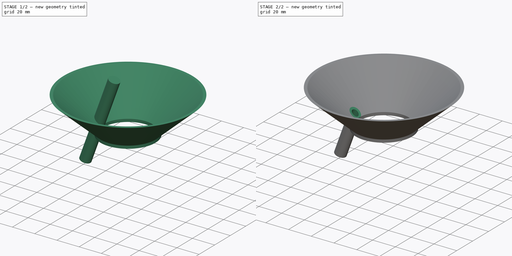
[diagram: build sequence overview — one tinted view per stage of 2, left to right]
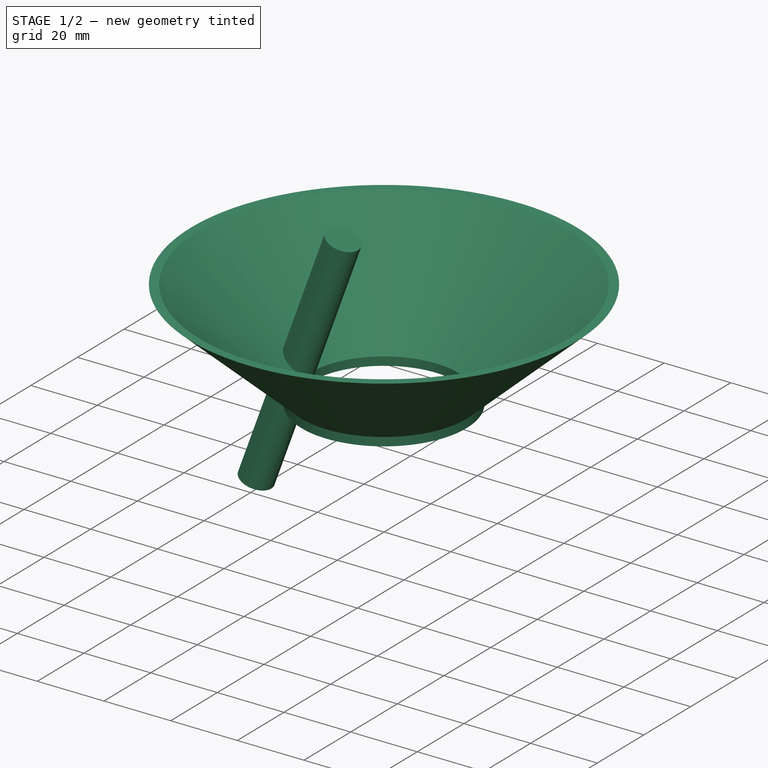
[diagram: stage 1 of 2 — iso view after this stage's code; geometry added in this stage tinted green]
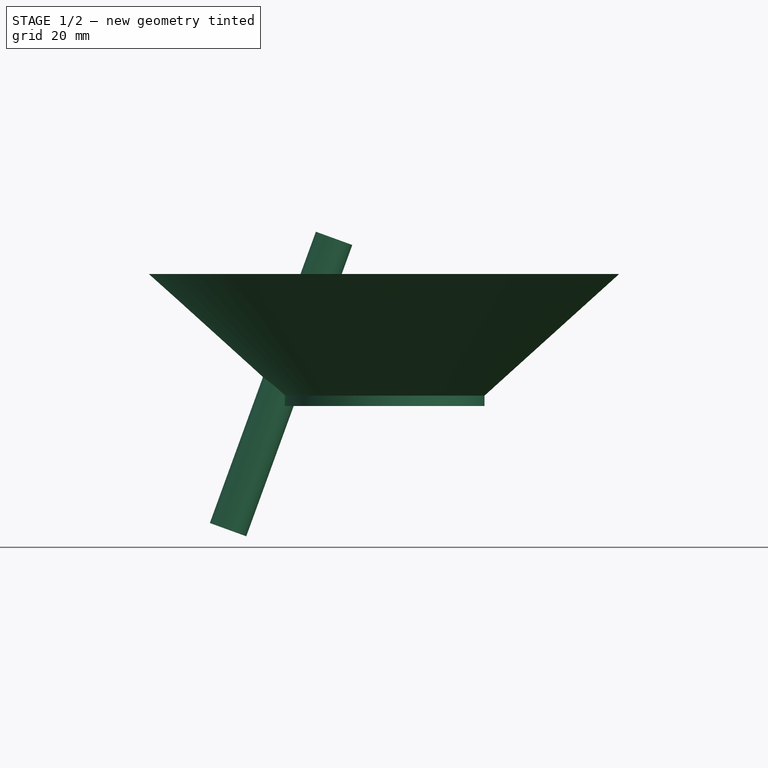
[diagram: stage 1 of 2 — front view after this stage's code; geometry added in this stage tinted green]
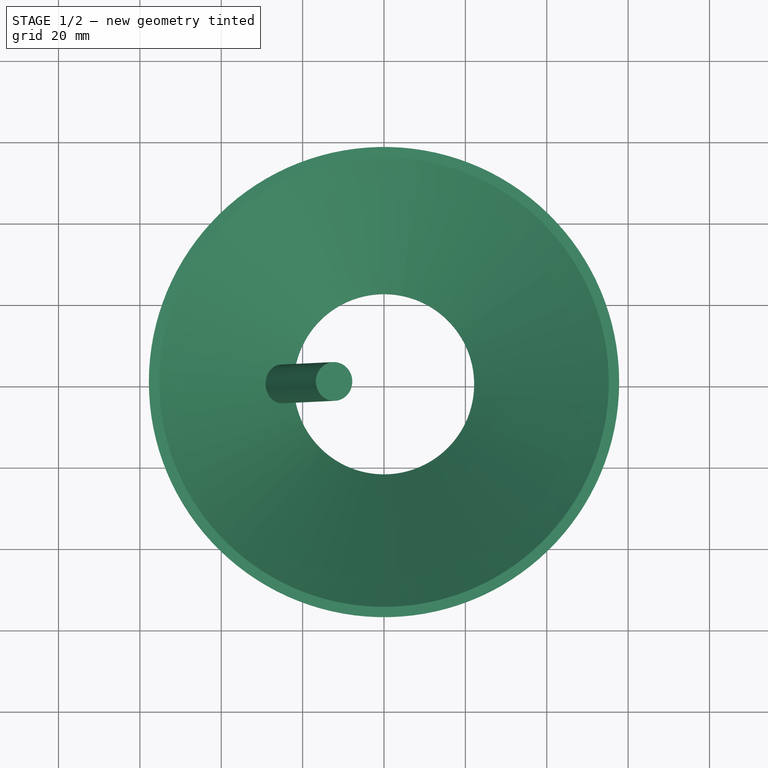
[diagram: stage 1 of 2 — top view after this stage's code; geometry added in this stage tinted green]
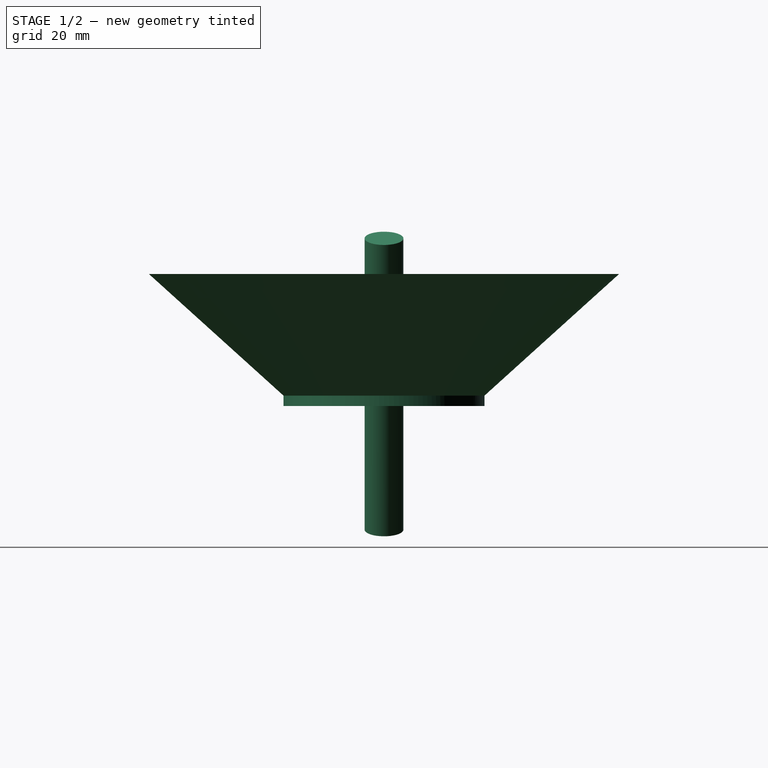
[diagram: stage 1 of 2 — right view after this stage's code; geometry added in this stage tinted green]
FCSTD DOCUMENT  (FreeCAD 0.22R38459 (Git))
Label: fuel spill funnel
License: All rights reserved
LicenseURL: http://en.wikipedia.org/wiki/All_rights_reserved
objects: Sketcher::SketchObject×4, PartDesign::Revolution×1, PartDesign::Pad×1, PartDesign::Groove×1, PartDesign::Pocket×1, PartDesign::Body×1
note: 21 computed .brp shape members not serialized (recipe doc carries the construction recipe); baked Part::Feature solids carry a one-line shape summary decoded from their .brp

FEATURE [Sketcher::SketchObject] Sketch  label="FunnelSketch"
  ArcFitTolerance = 0
  AttachmentSupport = -> [XZ_Plane]
  FullyConstrained = true
  MakeInternals = false
  MapMode = 5
  Placement = pos=(0,0,0) rot=(1,0,0;1.5708rad)
  expr: .Constraints.id = 1.745 in / 2
  expr: Constraints[17] = 4.551 in / 2
  sketch-geometry (7):
    g0: LineSegment StartX=22.1615 StartY=0 StartZ=0 EndX=22.1615 EndY=2.54 EndZ=0
    g1: LineSegment StartX=22.1615 StartY=2.54 StartZ=0 EndX=55.2577 EndY=32.4358 EndZ=0
    g2: LineSegment StartX=55.2577 StartY=32.4358 StartZ=0 EndX=57.7977 EndY=32.4358 EndZ=0
    g3: LineSegment StartX=57.7977 StartY=32.4358 StartZ=0 EndX=24.7015 EndY=2.54 EndZ=0
    g4: LineSegment StartX=24.7015 StartY=2.54 StartZ=0 EndX=24.7015 EndY=0 EndZ=0
    g5: LineSegment StartX=24.7015 StartY=0 StartZ=0 EndX=22.1615 EndY=0 EndZ=0
    g6: LineSegment [constr] StartX=22.1615 StartY=2.54 StartZ=0 EndX=24.7015 EndY=2.54 EndZ=0
  constraints (20):
    c: PointOnObject(g0,g-1)
    c: Coincident(g0,g1)
    c: Coincident(g1,g2)
    c: Horizontal(g2)
    c: Coincident(g2,g3)
    c: Coincident(g3,g4)
    c: PointOnObject(g4,g-1)
    c: Vertical(g4)
    c: Coincident(g4,g5)
    c: Coincident(g5,g0)
    c: Vertical(g0)
    c: Coincident(g6,g0)
    c: Coincident(g6,g3)
    c: Horizontal(g6)
    c: DistanceX(g-1,g0) = 22.1615  'id'
    c: DistanceX(g5,g5) = 2.54  'wall_thickness'
    c: Equal(g5,g2)
    c: DistanceX(g-1,g2) = 57.7977
    c: DistanceY(g-1,g2) = 32.4358
    c: Distance(g0,g0) = 2.54
FEATURE [PartDesign::Revolution] Revolution  label="Funnel"
  Angle = 360
  Angle2 = 60
  Axis = (0,2e-16,1)
  Base = (0,0,0)
  Placement = pos=(0,0,0) rot=(1,0,0;1.5708rad)
  Profile = -> Sketch
  ReferenceAxis = -> Sketch [V_Axis]
  Reversed = true
  Suppressed = false
  Type = 0
FEATURE [Sketcher::SketchObject] Sketch001  label="PipeSketch"
  ArcFitTolerance = 0
  AttachmentOffset = pos=(0,0,-3.81) rot=(0,1,0;0.349066rad)
  AttachmentSupport = -> [XY_Plane]
  FullyConstrained = true
  MakeInternals = false
  MapMode = 5
  Placement = pos=(0,0,-3.81) rot=(0,1,0;0.349066rad)
  expr: Constraints[1] = Sketch.Constraints.id * 2
  expr: Constraints[5] = 3 in / 8
  sketch-geometry (3):
    g0: Circle [constr] CenterX=0 CenterY=0 CenterZ=0 NormalX=0 NormalY=0 NormalZ=1 AngleXU=0 Radius=22.1615
    g1: Circle CenterX=-26.924 CenterY=0 CenterZ=0 NormalX=0 NormalY=0 NormalZ=1 AngleXU=0 Radius=4.7625
    g2: Circle [constr] CenterX=-26.924 CenterY=0 CenterZ=0 NormalX=0 NormalY=0 NormalZ=1 AngleXU=0 Radius=4.1275
  constraints (7):
    c: Coincident(g0,g-1)
    c: Diameter(g0) = 44.323
    c: PointOnObject(g1,g-1)
    c: Tangent(g1,g0)
    c: Coincident(g2,g1)
    c: Diameter(g1) = 9.525
    c: Distance(g2,g1) = 0.635
FEATURE [PartDesign::Pad] Pad  label="Pipe"
  BaseFeature = -> Revolution
  Direction = (0.34202,0,0.939693)
  Length = 76.2
  Length2 = 10
  Midplane = true
  Placement = pos=(0,0,0) rot=(1,0,0;1.5708rad)
  Profile = -> Sketch001
  ReferenceAxis = -> Sketch001 [N_Axis]
  Suppressed = false
  Type = 0
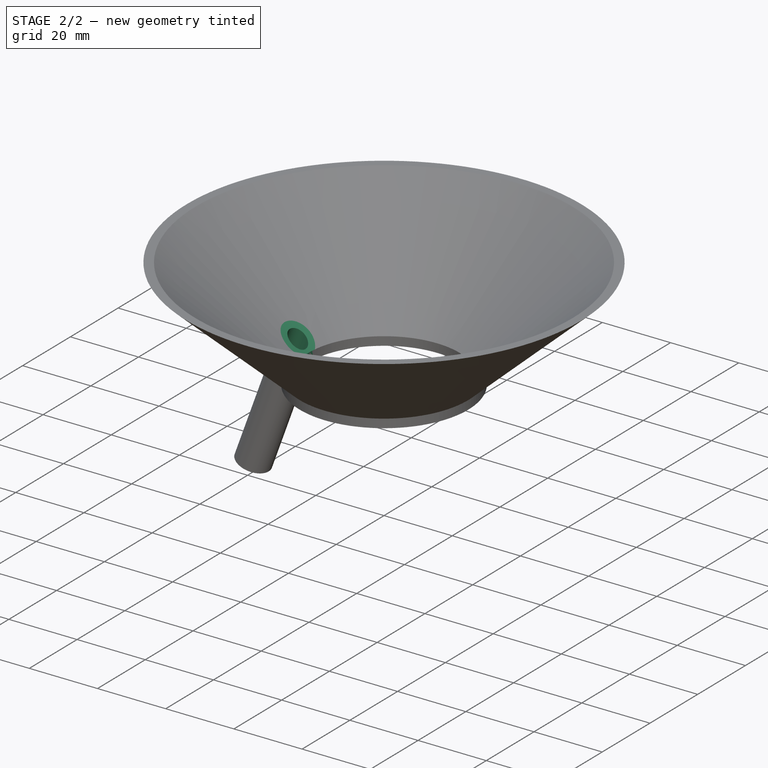
[diagram: stage 2 of 2 — iso view after this stage's code; geometry added in this stage tinted green]
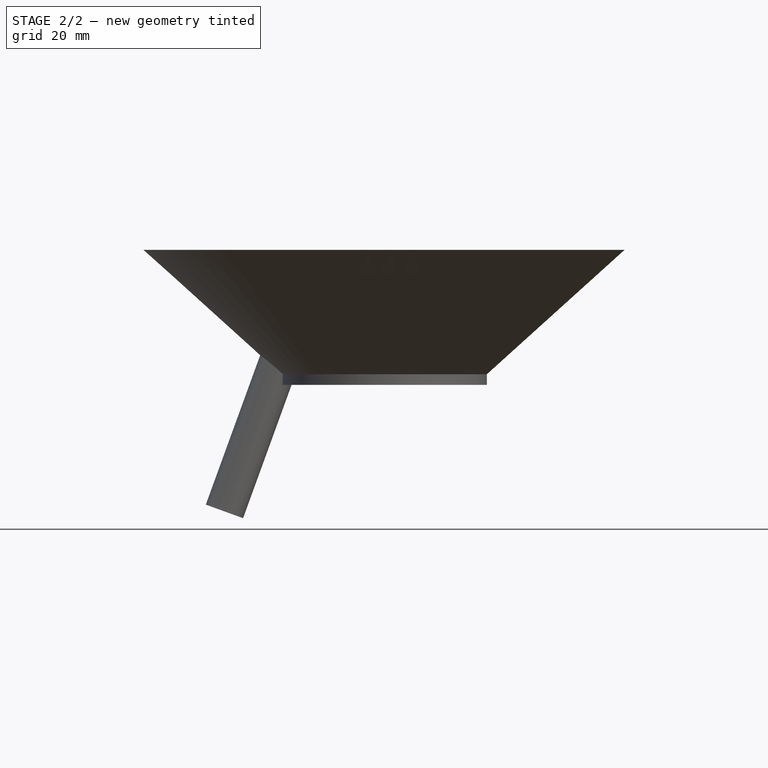
[diagram: stage 2 of 2 — front view after this stage's code; geometry added in this stage tinted green]
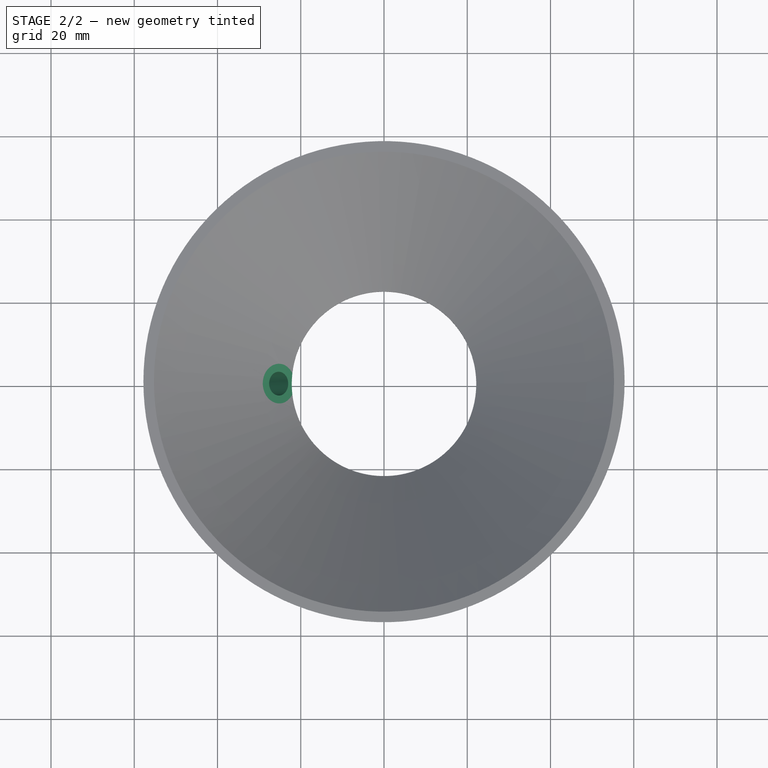
[diagram: stage 2 of 2 — top view after this stage's code; geometry added in this stage tinted green]
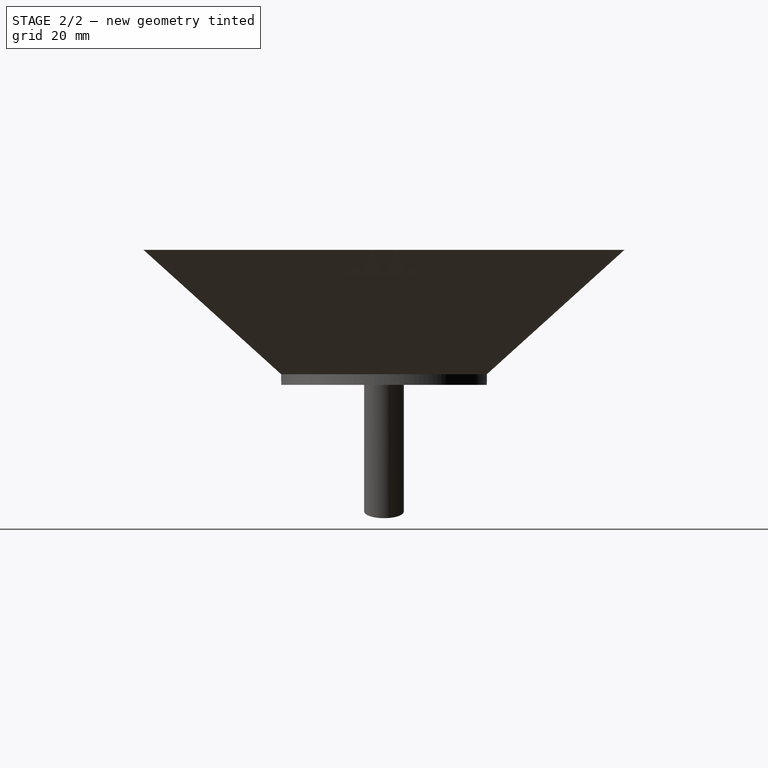
[diagram: stage 2 of 2 — right view after this stage's code; geometry added in this stage tinted green]
FEATURE [Sketcher::SketchObject] Sketch002
  ArcFitTolerance = 0
  AttachmentSupport = -> [XZ_Plane]
  FullyConstrained = true
  MakeInternals = false
  MapMode = 5
  Placement = pos=(0,0,0) rot=(1,0,0;1.5708rad)
  expr: .Constraints.id = Sketch.Constraints.id
  expr: .Constraints.wall_thickness = Sketch.Constraints.wall_thickness
  expr: Constraints[17] = Sketch.Constraints[17]
  expr: Constraints[18] = Sketch.Constraints[18]
  expr: Constraints[19] = Sketch.Constraints[19]
  sketch-geometry (10):
    g0: LineSegment StartX=22.1615 StartY=0 StartZ=0 EndX=22.1615 EndY=2.54 EndZ=0
    g1: LineSegment StartX=22.1615 StartY=2.54 StartZ=0 EndX=55.2577 EndY=32.4358 EndZ=0
    g2: LineSegment [constr] StartX=55.2577 StartY=32.4358 StartZ=0 EndX=57.7977 EndY=32.4358 EndZ=0
    g3: LineSegment [constr] StartX=57.7977 StartY=32.4358 StartZ=0 EndX=24.7015 EndY=2.54 EndZ=0
    g4: LineSegment [constr] StartX=24.7015 StartY=2.54 StartZ=0 EndX=24.7015 EndY=0 EndZ=0
    g5: LineSegment [constr] StartX=24.7015 StartY=0 StartZ=0 EndX=22.1615 EndY=0 EndZ=0
    g6: LineSegment [constr] StartX=22.1615 StartY=2.54 StartZ=0 EndX=24.7015 EndY=2.54 EndZ=0
    g7: LineSegment StartX=55.2577 StartY=32.4358 StartZ=0 EndX=0 EndY=32.4358 EndZ=0
    g8: LineSegment StartX=0 StartY=32.4358 StartZ=0 EndX=0 EndY=0 EndZ=0
    g9: LineSegment StartX=0 StartY=0 StartZ=0 EndX=22.1615 EndY=0 EndZ=0
  constraints (27):
    c: PointOnObject(g0,g-1)
    c: Coincident(g0,g1)
    c: Coincident(g1,g2)
    c: Horizontal(g2)
    c: Coincident(g2,g3)
    c: Coincident(g3,g4)
    c: PointOnObject(g4,g-1)
    c: Vertical(g4)
    c: Coincident(g4,g5)
    c: Coincident(g5,g0)
    c: Vertical(g0)
    c: Coincident(g6,g0)
    c: Coincident(g6,g3)
    c: Horizontal(g6)
    c: DistanceX(g-1,g0) = 22.1615  'id'
    c: DistanceX(g5,g5) = 2.54  'wall_thickness'
    c: Equal(g5,g2)
    c: DistanceX(g-1,g2) = 57.7977
    c: DistanceY(g-1,g2) = 32.4358
    c: Distance(g0,g0) = 2.54
    c: Coincident(g7,g1)
    c: PointOnObject(g7,g-2)
    c: Horizontal(g7)
    c: Coincident(g8,g7)
    c: Coincident(g8,g-1)
    c: Coincident(g9,g8)
    c: Coincident(g9,g0)
FEATURE [PartDesign::Groove] Groove
  Angle = 360
  Angle2 = 60
  Axis = (0,2e-16,1)
  Base = (0,0,0)
  BaseFeature = -> Pad
  Placement = pos=(0,0,0) rot=(1,0,0;1.5708rad)
  Profile = -> Sketch002
  ReferenceAxis = -> Sketch002 [V_Axis]
  Suppressed = false
  Type = 1
FEATURE [Sketcher::SketchObject] Sketch003
  ArcFitTolerance = 0
  AttachmentOffset = pos=(0,0,-3.81) rot=(0,1,0;0.349066rad)
  AttachmentSupport = -> [XY_Plane]
  FullyConstrained = true
  MakeInternals = false
  MapMode = 5
  Placement = pos=(0,0,-3.81) rot=(0,1,0;0.349066rad)
  expr: Constraints[1] = Sketch001.Constraints[1]
  expr: Constraints[5] = Sketch001.Constraints[5]
  sketch-geometry (3):
    g0: Circle [constr] CenterX=0 CenterY=0 CenterZ=0 NormalX=0 NormalY=0 NormalZ=1 AngleXU=0 Radius=22.1615
    g1: Circle [constr] CenterX=-26.924 CenterY=0 CenterZ=0 NormalX=0 NormalY=0 NormalZ=1 AngleXU=0 Radius=4.7625
    g2: Circle CenterX=-26.924 CenterY=0 CenterZ=0 NormalX=0 NormalY=0 NormalZ=1 AngleXU=0 Radius=2.8575
  constraints (7):
    c: Coincident(g0,g-1)
    c: Diameter(g0) = 44.323
    c: PointOnObject(g1,g-1)
    c: Tangent(g1,g0)
    c: Coincident(g2,g1)
    c: Diameter(g1) = 9.525
    c: Distance(g2,g1) = 1.905
FEATURE [PartDesign::Pocket] Pocket
  BaseFeature = -> Groove
  Direction = (-0.34202,0,-0.939693)
  Length = 5
  Length2 = 5
  Midplane = true
  Placement = pos=(0,0,0) rot=(1,0,0;1.5708rad)
  Profile = -> Sketch003
  ReferenceAxis = -> Sketch003 [N_Axis]
  Suppressed = false
  Type = 1
FEATURE [PartDesign::Body] Body
  AllowCompound = false
  Group = -> [Sketch,Revolution,Sketch001,Pad,Sketch002,Groove,Sketch003,Pocket]
  Origin = -> Origin
  Tip = -> Pocket
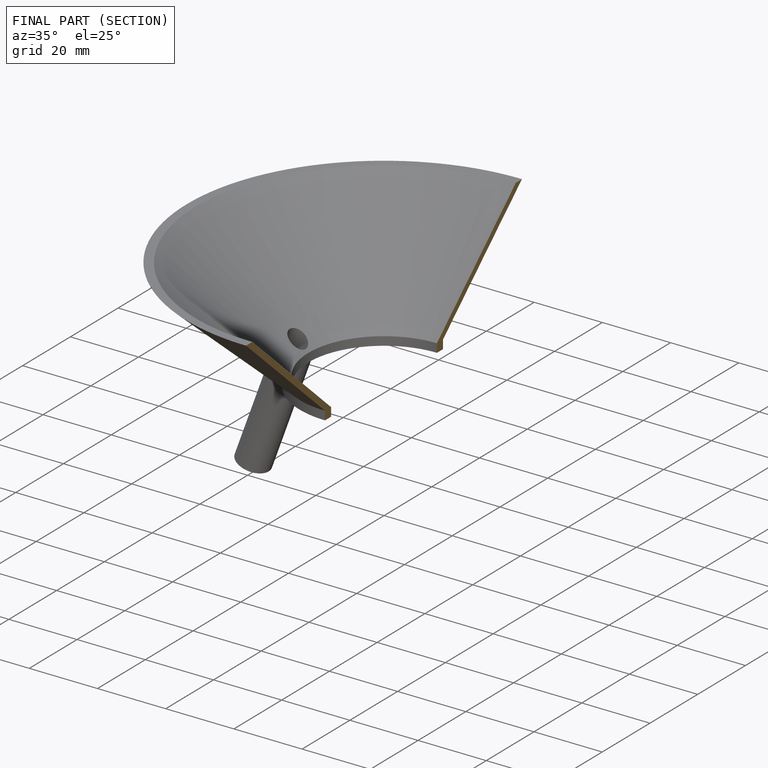
[diagram: finished part — half-section view (interior)]
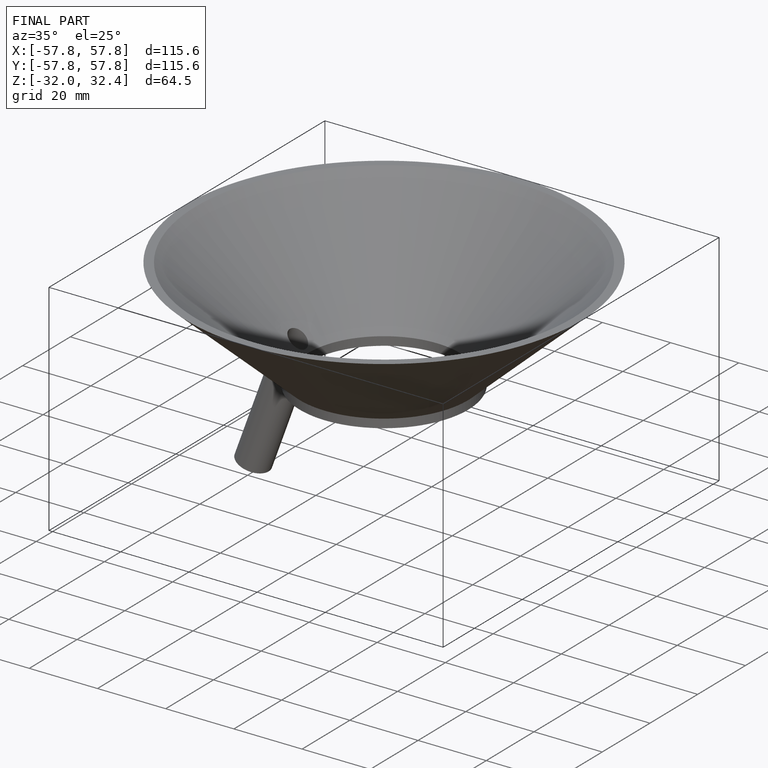
[diagram: finished part — iso view with bounding-box wireframe]
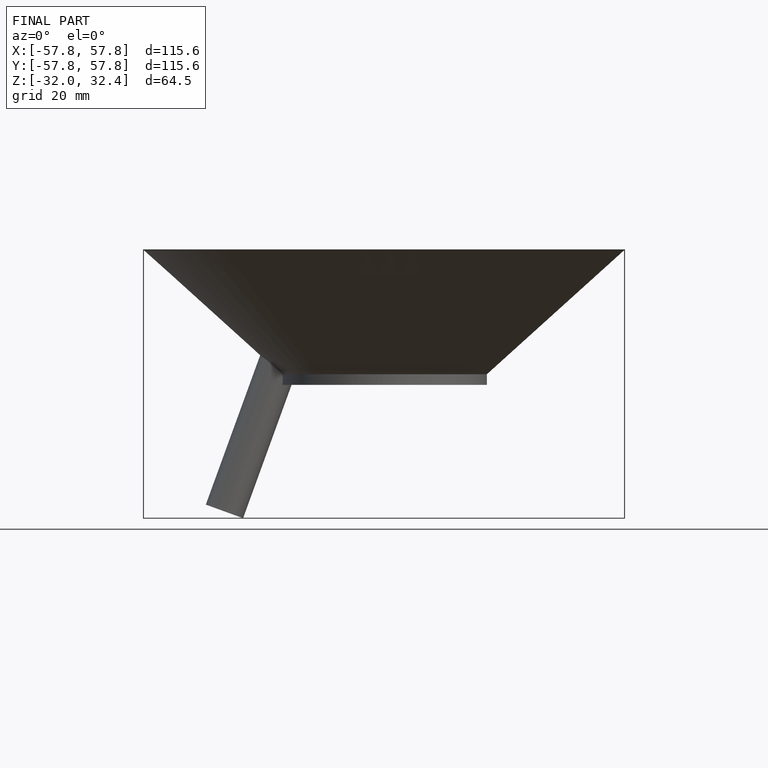
[diagram: finished part — front view with bounding-box wireframe]
